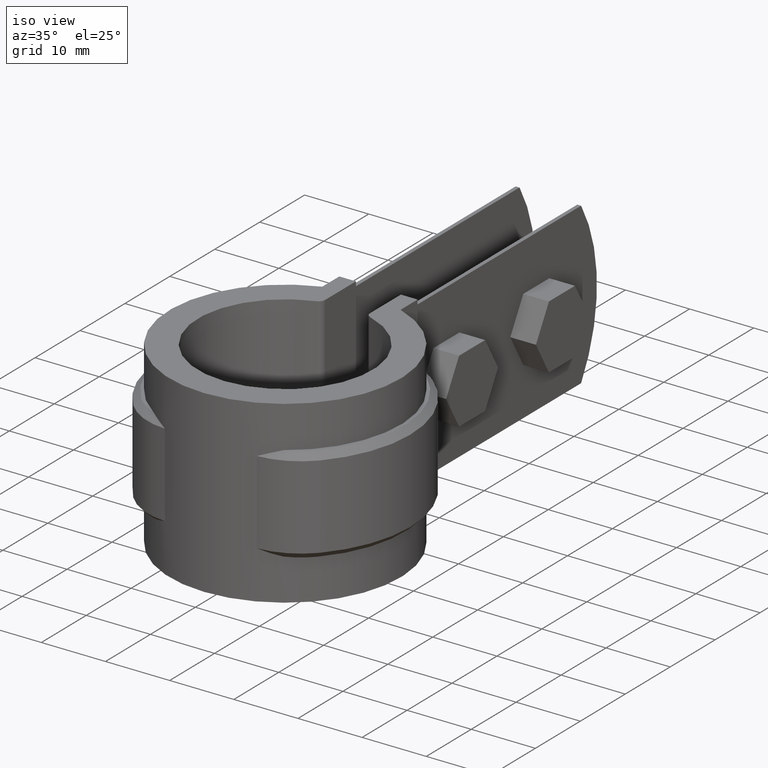
[diagram: clean part render]
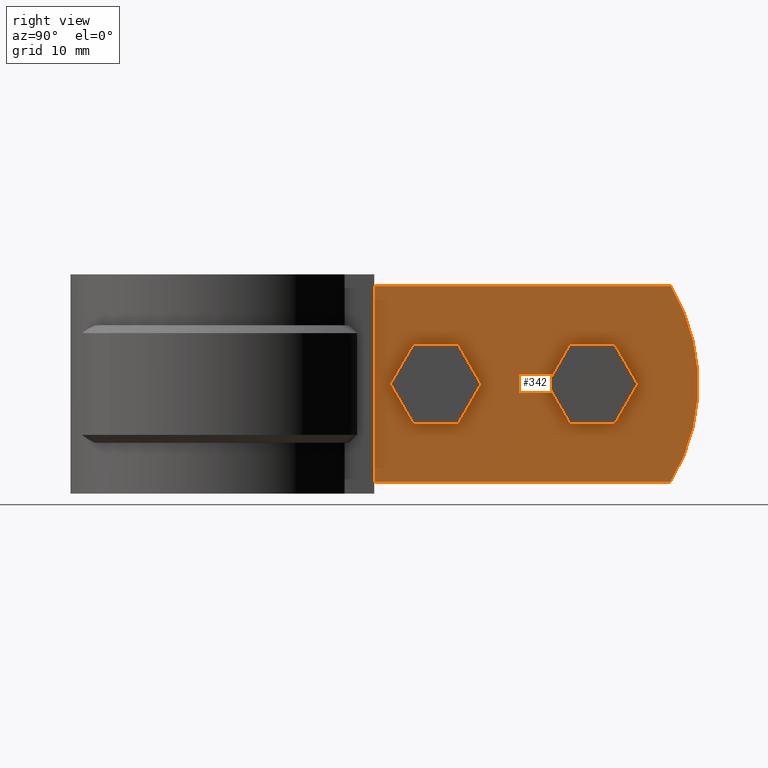
[diagram: tour spotlight — one face highlighted and labeled with its STEP entity id]
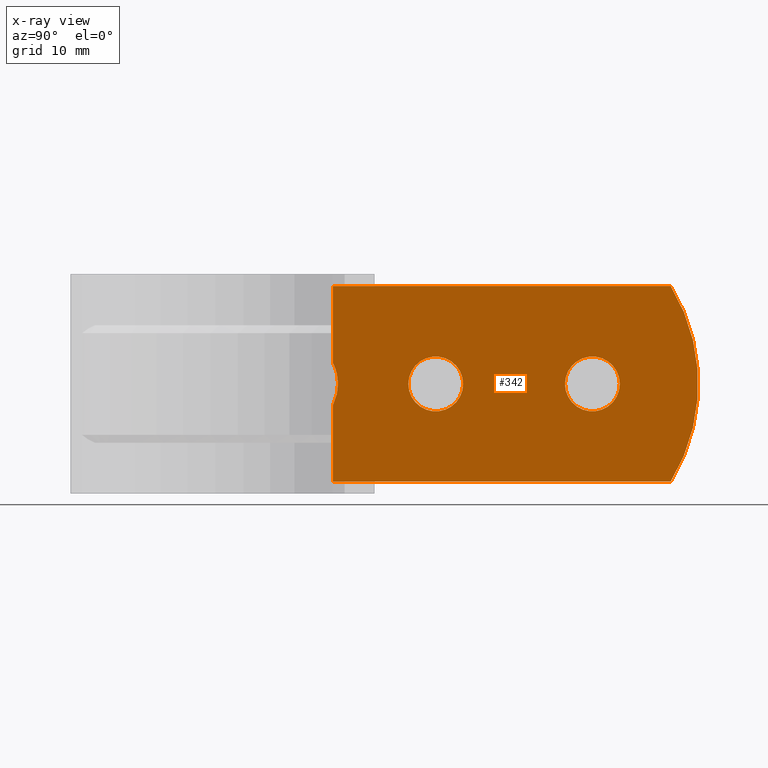
[diagram: x-ray of the same camera — body ghosted, this tour face saturated]
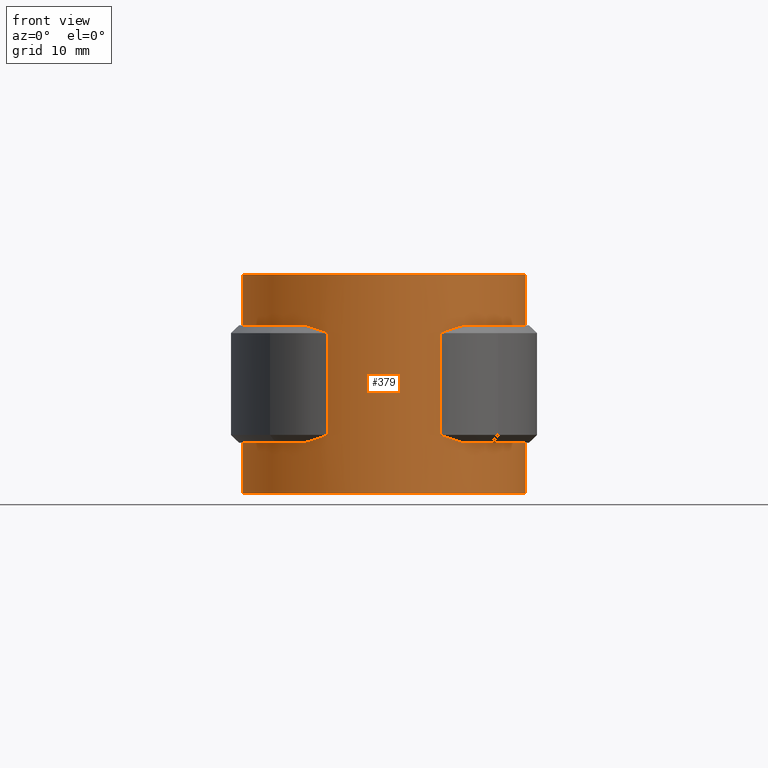
[diagram: tour spotlight — one face highlighted and labeled with its STEP entity id]
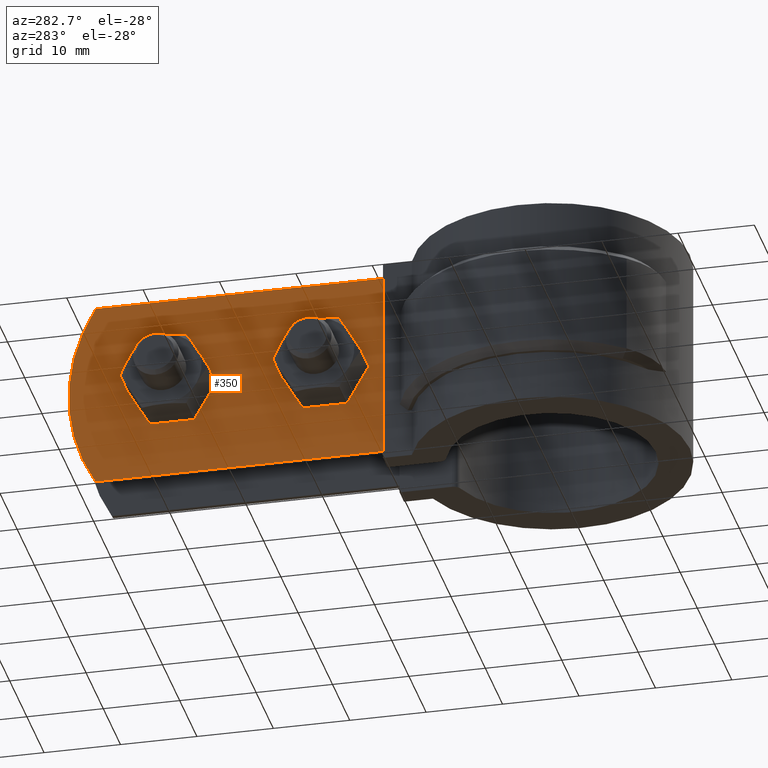
[diagram: tour spotlight — one face highlighted and labeled with its STEP entity id]
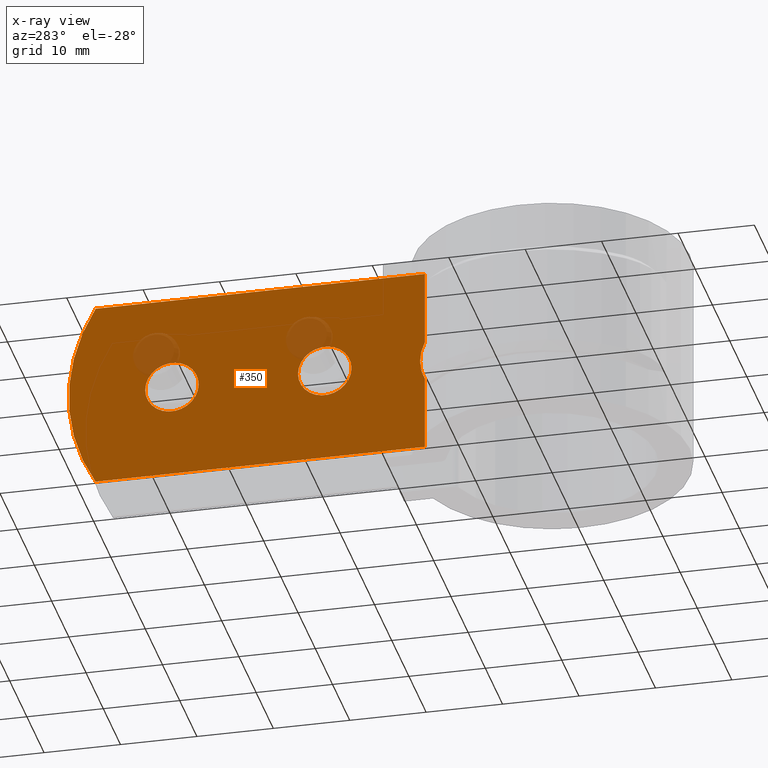
[diagram: x-ray of the same camera — body ghosted, this tour face saturated]
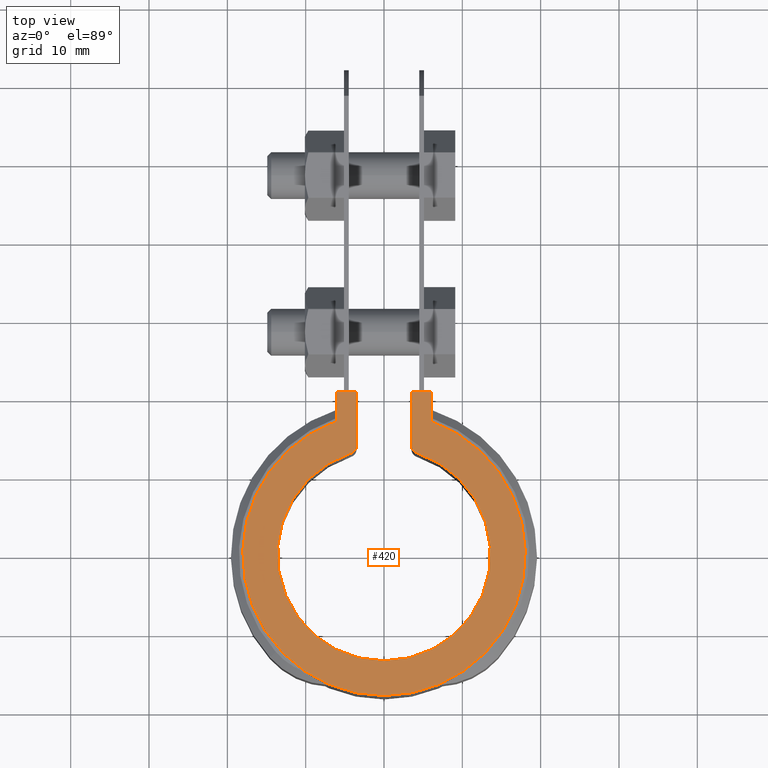
[diagram: tour spotlight — one face highlighted and labeled with its STEP entity id]
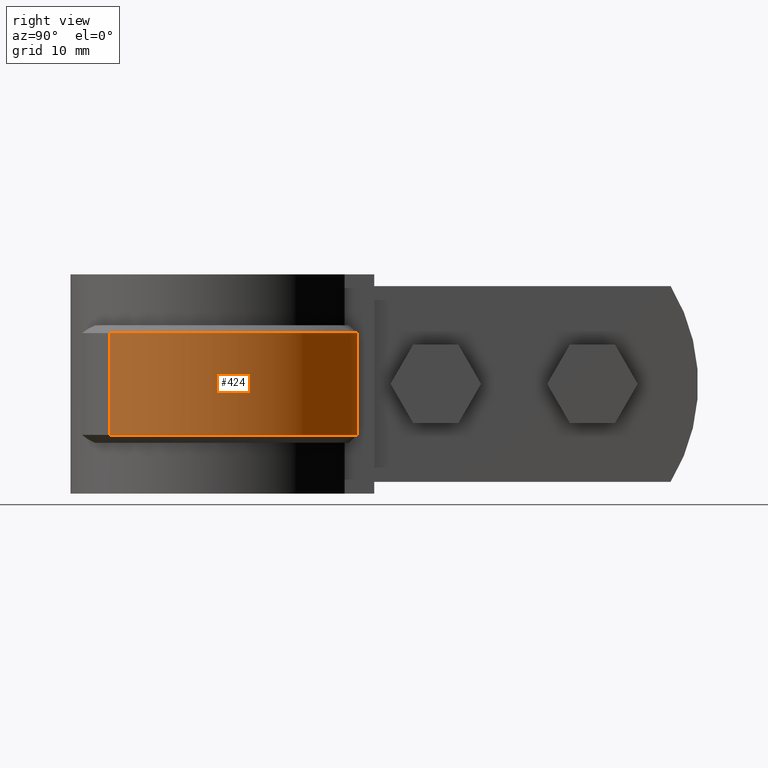
[diagram: tour spotlight — one face highlighted and labeled with its STEP entity id]
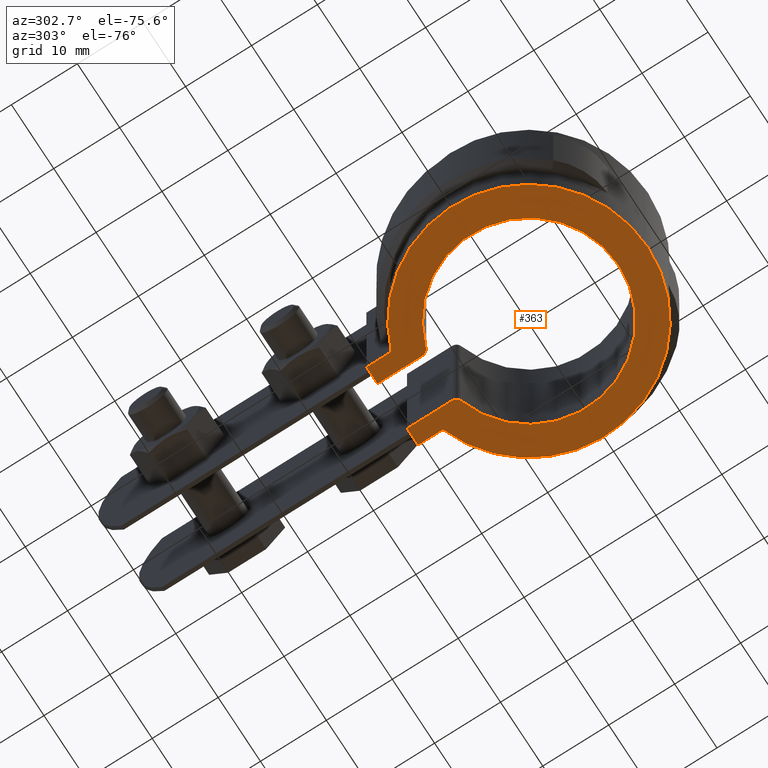
[diagram: tour spotlight — one face highlighted and labeled with its STEP entity id]
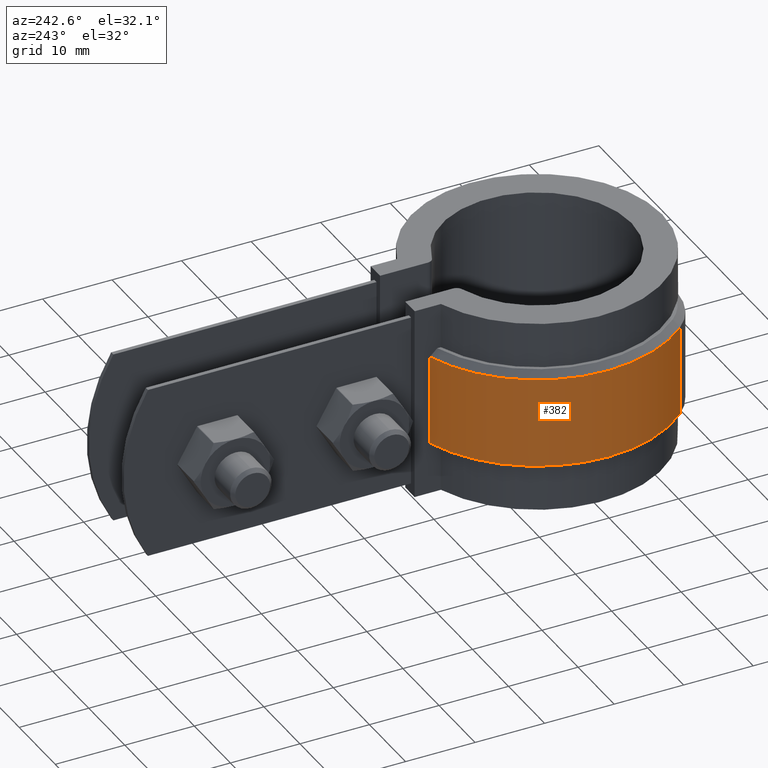
[diagram: tour spotlight — one face highlighted and labeled with its STEP entity id]
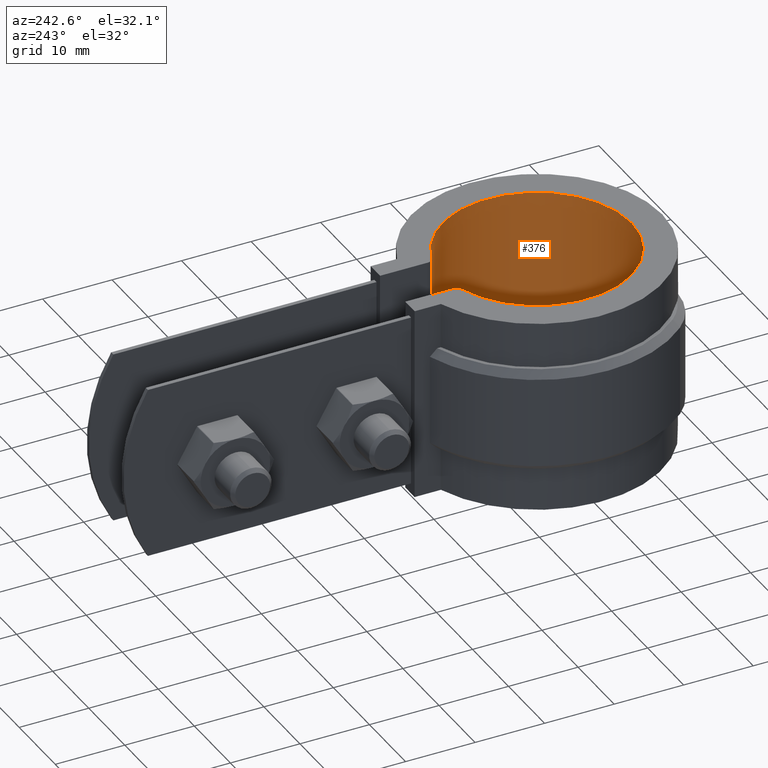
[diagram: tour spotlight — one face highlighted and labeled with its STEP entity id]
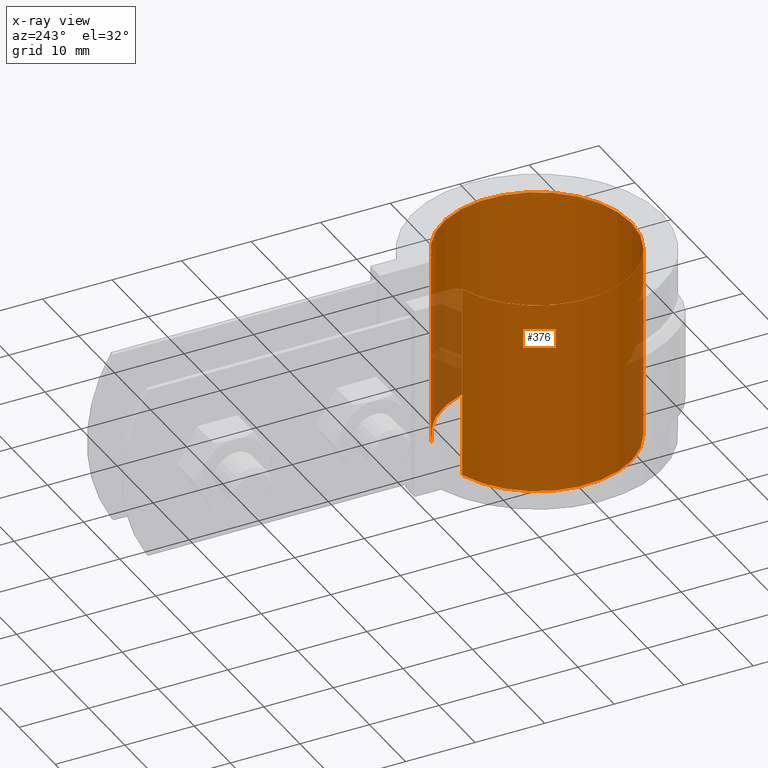
[diagram: x-ray of the same camera — body ghosted, this tour face saturated]
A machine part: a face-by-face anatomy tour. The part has 186 B-rep faces; the first image is the clean iso view, then the 8 largest visible faces are spotlighted one at a time (largest first), each with its STEP entity span.

Face 1 — right view, entity #342. An x-ray twin of the same camera follows (body ghosted, this face saturated) — the face is partly hidden behind the body. In plain terms, the highlighted planar face has unit normal (-1, 0, 0).
Definition (entity closure, byte-faithful):
#342 = ADVANCED_FACE( '', ( #557, #558, #559 ), #560, .F. );
#557 = FACE_BOUND( '', #1103, .T. );
#558 = FACE_BOUND( '', #1104, .T. );
#559 = FACE_OUTER_BOUND( '', #1105, .T. );
#560 = PLANE( '', #1106 );
#1103 = EDGE_LOOP( '', ( #2250 ) );
#1104 = EDGE_LOOP( '', ( #2251 ) );
#1105 = EDGE_LOOP( '', ( #2252, #2253, #2254, #2255, #2256, #2257 ) );
#1106 = AXIS2_PLACEMENT_3D( '', #2258, #2259, #2260 );
#2250 = ORIENTED_EDGE( '', *, *, #3940, .F. );
#2251 = ORIENTED_EDGE( '', *, *, #3941, .F. );
#2252 = ORIENTED_EDGE( '', *, *, #3874, .F. );
#2253 = ORIENTED_EDGE( '', *, *, #3942, .T. );
#2254 = ORIENTED_EDGE( '', *, *, #3943, .T. );
#2255 = ORIENTED_EDGE( '', *, *, #3944, .F. );
#2256 = ORIENTED_EDGE( '', *, *, #3848, .F. );
#2257 = ORIENTED_EDGE( '', *, *, #3931, .T. );
#2258 = CARTESIAN_POINT( '', ( 5.10000000000000, 15.4916106328554, 0.000000000000000 ) );
#2259 = DIRECTION( '', ( -1.00000000000000, 6.12303176911189E-017, 0.000000000000000 ) );
#2260 = DIRECTION( '', ( 6.12303176911189E-017, 1.00000000000000, 0.000000000000000 ) );
#3848 = EDGE_CURVE( '', #4358, #4360, #4361, .T. );
#3874 = EDGE_CURVE( '', #4407, #4401, #4409, .T. );
#3931 = EDGE_CURVE( '', #4358, #4401, #4502, .T. );
#3940 = EDGE_CURVE( '', #4514, #4514, #4515, .F. );
#3941 = EDGE_CURVE( '', #4516, #4516, #4517, .F. );
#3942 = EDGE_CURVE( '', #4407, #4518, #4519, .T. );
#3943 = EDGE_CURVE( '', #4518, #4520, #4521, .T. );
#3944 = EDGE_CURVE( '', #4360, #4520, #4522, .T. );
#4358 = VERTEX_POINT( '', #5303 );
#4360 = VERTEX_POINT( '', #5305 );
#4361 = LINE( '', #5306, #5307 );
#4401 = VERTEX_POINT( '', #5509 );
#4407 = VERTEX_POINT( '', #5559 );
#4409 = B_SPLINE_CURVE_WITH_KNOTS( '', 3, ( #5574, #5575, #5576, #5577, #5578, #5579, #5580, #5581, #5582, #5583 ), .UNSPECIFIED., .F., .F., ( 4, 2, 2, 2, 4 ), ( 7.15244812269100E-018, 0.00136579450935443, 0.00273158901870885, 0.00409738352806327, 0.00546317803741769 ), .UNSPECIFIED. );
#4502 = LINE( '', #6005, #6006 );
#4514 = VERTEX_POINT( '', #6058 );
#4515 = CIRCLE( '', #6059, 3.50000000000000 );
#4516 = VERTEX_POINT( '', #6060 );
#4517 = CIRCLE( '', #6061, 3.50000000000000 );
#4518 = VERTEX_POINT( '', #6062 );
#4519 = LINE( '', #6063, #6064 );
#4520 = VERTEX_POINT( '', #6065 );
#4521 = LINE( '', #6066, #6067 );
#4522 = CIRCLE( '', #6068, 24.0000000000000 );
#5303 = CARTESIAN_POINT( '', ( 5.10000000000000, 15.4916106328554, 0.000000000000000 ) );
#5305 = CARTESIAN_POINT( '', ( 5.10000000000001, 58.5870920108522, 2.39038878801277E-031 ) );
#5306 = CARTESIAN_POINT( '', ( 5.10000000000000, 15.4916106328554, 0.000000000000000 ) );
#5307 = VECTOR( '', #7719, 1000.00000000000 );
#5509 = CARTESIAN_POINT( '', ( 5.10000000000000, 15.4916106328554, -9.85142775085576 ) );
#5559 = CARTESIAN_POINT( '', ( 5.10000000000000, 15.4916106328554, -15.1485722491442 ) );
#5574 = CARTESIAN_POINT( '', ( 5.10000000000000, 15.4916106328554, -15.1485722491442 ) );
#5575 = CARTESIAN_POINT( '', ( 5.10000000000000, 15.6967920675091, -14.7350618658671 ) );
#5576 = CARTESIAN_POINT( '', ( 5.10000000000001, 15.8522280185925, -14.3064620349916 ) );
#5577 = CARTESIAN_POINT( '', ( 5.10000000000001, 16.0655025348784, -13.4196578637597 ) );
#5578 = CARTESIAN_POINT( '', ( 5.09999999999998, 16.1222734361860, -12.9567523839680 ) );
#5579 = CARTESIAN_POINT( '', ( 5.09999999999998, 16.1225202626657, -12.0462908152732 ) );
#5580 = CARTESIAN_POINT( '', ( 5.10000000000000, 16.0678594231896, -11.5925929151367 ) );
#5581 = CARTESIAN_POINT( '', ( 5.10000000000000, 15.8533328580298, -10.6957203202213 ) );
#5582 = CARTESIAN_POINT( '', ( 5.09999999999949, 15.6967703169076, -10.2648942992723 ) );
#5583 = CARTESIAN_POINT( '', ( 5.09999999999949, 15.4916106328555, -9.85142775085575 ) );
#6005 = CARTESIAN_POINT( '', ( 5.10000000000000, 15.4916106328554, 0.000000000000000 ) );
#6006 = VECTOR( '', #7792, 1000.00000000000 );
#6058 = CARTESIAN_POINT( '', ( 5.10000000000000, 25.0992907623043, -12.5000000000000 ) );
#6059 = AXIS2_PLACEMENT_3D( '', #7802, #7803, #7804 );
#6060 = CARTESIAN_POINT( '', ( 5.10000000000000, 45.0992907623043, -12.5000000000000 ) );
#6061 = AXIS2_PLACEMENT_3D( '', #7805, #7806, #7807 );
#6062 = CARTESIAN_POINT( '', ( 5.10000000000000, 15.4916106328554, -25.0000000000000 ) );
#6063 = CARTESIAN_POINT( '', ( 5.10000000000000, 15.4916106328554, 0.000000000000000 ) );
#6064 = VECTOR( '', #7808, 1000.00000000000 );
#6065 = CARTESIAN_POINT( '', ( 5.10000000000001, 58.5870920108522, -25.0000000000000 ) );
#6066 = CARTESIAN_POINT( '', ( 5.10000000000000, 15.4916106328554, -25.0000000000000 ) );
#6067 = VECTOR( '', #7809, 1000.00000000000 );
#6068 = AXIS2_PLACEMENT_3D( '', #7810, #7811, #7812 );
#7719 = DIRECTION( '', ( 6.12303176911189E-017, 1.00000000000000, 0.000000000000000 ) );
#7792 = DIRECTION( '', ( 0.000000000000000, 0.000000000000000, -1.00000000000000 ) );
#7802 = CARTESIAN_POINT( '', ( 5.10000000000000, 28.5992907623043, -12.5000000000000 ) );
#7803 = DIRECTION( '', ( -1.00000000000000, 6.12303176911189E-017, 0.000000000000000 ) );
#7804 = DIRECTION( '', ( -6.12303176911189E-017, -1.00000000000000, 0.000000000000000 ) );
#7805 = CARTESIAN_POINT( '', ( 5.10000000000000, 48.5992907623043, -12.5000000000000 ) );
#7806 = DIRECTION( '', ( -1.00000000000000, 6.12303176911189E-017, 0.000000000000000 ) );
#7807 = DIRECTION( '', ( -6.12303176911189E-017, -1.00000000000000, 0.000000000000000 ) );
#7808 = DIRECTION( '', ( 0.000000000000000, 0.000000000000000, -1.00000000000000 ) );
#7809 = DIRECTION( '', ( 6.12303176911189E-017, 1.00000000000000, 0.000000000000000 ) );
#7810 = CARTESIAN_POINT( '', ( 5.09999999999999, 38.0992907623043, -12.5000000000000 ) );
#7811 = DIRECTION( '', ( -1.00000000000000, 6.12303176911189E-017, 0.000000000000000 ) );
#7812 = DIRECTION( '', ( -6.12303176911189E-017, -1.00000000000000, 0.000000000000000 ) );

Face 2 — front view, entity #379. In plain terms, the highlighted cylindrical surface (partial cylindrical patch) has radius 18.035 mm, axis along (0, 0, -1).
Definition (entity closure, byte-faithful):
#379 = ADVANCED_FACE( '', ( #643 ), #644, .T. );
#643 = FACE_OUTER_BOUND( '', #1237, .T. );
#644 = CYLINDRICAL_SURFACE( '', #1238, 18.0350000000000 );
#1237 = EDGE_LOOP( '', ( #2574, #2575, #2576, #2577, #2578, #2579, #2580, #2581, #2582, #2583, #2584, #2585, #2586, #2587, #2588, #2589 ) );
#1238 = AXIS2_PLACEMENT_3D( '', #2590, #2591, #2592 );
#2574 = ORIENTED_EDGE( '', *, *, #4056, .F. );
#2575 = ORIENTED_EDGE( '', *, *, #4053, .T. );
#2576 = ORIENTED_EDGE( '', *, *, #4057, .T. );
#2577 = ORIENTED_EDGE( '', *, *, #4058, .T. );
#2578 = ORIENTED_EDGE( '', *, *, #4059, .T. );
#2579 = ORIENTED_EDGE( '', *, *, #4060, .T. );
#2580 = ORIENTED_EDGE( '', *, *, #4061, .T. );
#2581 = ORIENTED_EDGE( '', *, *, #3985, .F. );
#2582 = ORIENTED_EDGE( '', *, *, #4062, .T. );
#2583 = ORIENTED_EDGE( '', *, *, #4063, .T. );
#2584 = ORIENTED_EDGE( '', *, *, #4064, .T. );
#2585 = ORIENTED_EDGE( '', *, *, #4065, .T. );
#2586 = ORIENTED_EDGE( '', *, *, #4066, .F. );
#2587 = ORIENTED_EDGE( '', *, *, #3979, .F. );
#2588 = ORIENTED_EDGE( '', *, *, #3977, .F. );
#2589 = ORIENTED_EDGE( '', *, *, #4067, .T. );
#2590 = CARTESIAN_POINT( '', ( 0.000000000000000, 1.38777878078145E-014, -26.5000000000000 ) );
#2591 = DIRECTION( '', ( 0.000000000000000, 0.000000000000000, -1.00000000000000 ) );
#2592 = DIRECTION( '', ( 0.000000000000000, -1.00000000000000, 0.000000000000000 ) );
#3977 = EDGE_CURVE( '', #4573, #4556, #4575, .T. );
#3979 = EDGE_CURVE( '', #4556, #4578, #4579, .T. );
#3985 = EDGE_CURVE( '', #4588, #4590, #4591, .T. );
#4053 = EDGE_CURVE( '', #4712, #4710, #4713, .T. );
#4056 = EDGE_CURVE( '', #4712, #4716, #4717, .T. );
#4057 = EDGE_CURVE( '', #4710, #4718, #4719, .T. );
#4058 = EDGE_CURVE( '', #4718, #4720, #4721, .T. );
#4059 = EDGE_CURVE( '', #4720, #4722, #4723, .T. );
#4060 = EDGE_CURVE( '', #4722, #4724, #4725, .T. );
#4061 = EDGE_CURVE( '', #4724, #4590, #4726, .T. );
#4062 = EDGE_CURVE( '', #4588, #4727, #4728, .T. );
#4063 = EDGE_CURVE( '', #4727, #4729, #4730, .T. );
#4064 = EDGE_CURVE( '', #4729, #4731, #4732, .F. );
#4065 = EDGE_CURVE( '', #4731, #4733, #4734, .T. );
#4066 = EDGE_CURVE( '', #4578, #4733, #4735, .T. );
#4067 = EDGE_CURVE( '', #4573, #4716, #4736, .T. );
#4556 = VERTEX_POINT( '', #6114 );
#4573 = VERTEX_POINT( '', #6136 );
#4575 = CIRCLE( '', #6139, 18.0350000000000 );
#4578 = VERTEX_POINT( '', #6143 );
#4579 = LINE( '', #6144, #6145 );
#4588 = VERTEX_POINT( '', #6162 );
#4590 = VERTEX_POINT( '', #6165 );
#4591 = LINE( '', #6166, #6167 );
#4710 = VERTEX_POINT( '', #6485 );
#4712 = VERTEX_POINT( '', #6487 );
#4713 = B_SPLINE_CURVE_WITH_KNOTS( '', 3, ( #6488, #6489, #6490, #6491 ), .UNSPECIFIED., .F., .F., ( 4, 4 ), ( 8.49837472194074E-018, 0.00356639113726256 ), .UNSPECIFIED. );
#4716 = VERTEX_POINT( '', #6495 );
#4717 = CIRCLE( '', #6496, 18.0350000000000 );
#4718 = VERTEX_POINT( '', #6497 );
#4719 = LINE( '', #6498, #6499 );
#4720 = VERTEX_POINT( '', #6500 );
#4721 = B_SPLINE_CURVE_WITH_KNOTS( '', 3, ( #6501, #6502, #6503, #6504 ), .UNSPECIFIED., .F., .F., ( 4, 4 ), ( 0.000000000000000, 0.00356639113726257 ), .UNSPECIFIED. );
#4722 = VERTEX_POINT( '', #6505 );
#4723 = CIRCLE( '', #6506, 18.0350000000000 );
#4724 = VERTEX_POINT( '', #6507 );
#4725 = LINE( '', #6508, #6509 );
#4726 = CIRCLE( '', #6510, 18.0350000000000 );
#4727 = VERTEX_POINT( '', #6511 );
#4728 = CIRCLE( '', #6512, 18.0350000000000 );
#4729 = VERTEX_POINT( '', #6513 );
#4730 = B_SPLINE_CURVE_WITH_KNOTS( '', 3, ( #6514, #6515, #6516, #6517 ), .UNSPECIFIED., .F., .F., ( 4, 4 ), ( 9.69739903612216E-018, 0.00356639113726256 ), .UNSPECIFIED. );
#4731 = VERTEX_POINT( '', #6518 );
#4732 = LINE( '', #6519, #6520 );
#4733 = VERTEX_POINT( '', #6521 );
#4734 = B_SPLINE_CURVE_WITH_KNOTS( '', 3, ( #6522, #6523, #6524, #6525 ), .UNSPECIFIED., .F., .F., ( 4, 4 ), ( 0.000000000000000, 0.00356639113726257 ), .UNSPECIFIED. );
#4735 = CIRCLE( '', #6526, 18.0350000000000 );
#4736 = LINE( '', #6527, #6528 );
#6114 = CARTESIAN_POINT( '', ( -6.10000000000000, 16.9720719124095, -26.5000000000000 ) );
#6136 = CARTESIAN_POINT( '', ( 6.10000000000001, 16.9720719124095, -26.5000000000000 ) );
#6139 = AXIS2_PLACEMENT_3D( '', #7873, #7874, #7875 );
#6143 = CARTESIAN_POINT( '', ( -6.10000000000000, 16.9720719124095, -20.0000000000000 ) );
#6144 = CARTESIAN_POINT( '', ( -6.10000000000000, 16.9720719124095, -26.5000000000000 ) );
#6145 = VECTOR( '', #7877, 1000.00000000000 );
#6162 = CARTESIAN_POINT( '', ( -6.10000000000000, 16.9720719124095, -5.00000000000000 ) );
#6165 = CARTESIAN_POINT( '', ( -6.10000000000000, 16.9720719124095, 1.50000000000000 ) );
#6166 = CARTESIAN_POINT( '', ( -6.10000000000000, 16.9720719124095, -26.5000000000000 ) );
#6167 = VECTOR( '', #7881, 1000.00000000000 );
#6485 = CARTESIAN_POINT( '', ( 7.17238060487721, -16.5474524159697, -19.0000000000000 ) );
#6487 = CARTESIAN_POINT( '', ( 10.1699563448573, -14.8940663669697, -20.0000000000000 ) );
#6488 = CARTESIAN_POINT( '', ( 10.1699563448573, -14.8940663669697, -20.0000000000000 ) );
#6489 = CARTESIAN_POINT( '', ( 9.20551594035216, -15.5526049130839, -19.7400863560935 ) );
#6490 = CARTESIAN_POINT( '', ( 8.20683278901869, -16.0990761586644, -19.3975274280984 ) );
#6491 = CARTESIAN_POINT( '', ( 7.17238060487720, -16.5474524159697, -19.0000000000000 ) );
#6495 = CARTESIAN_POINT( '', ( 6.10000000000001, 16.9720719124095, -20.0000000000000 ) );
#6496 = AXIS2_PLACEMENT_3D( '', #7979, #7980, #7981 );
#6497 = CARTESIAN_POINT( '', ( 7.17238060487721, -16.5474524159697, -6.00000000000000 ) );
#6498 = CARTESIAN_POINT( '', ( 7.17238060487721, -16.5474524159697, -12.5000000000000 ) );
#6499 = VECTOR( '', #7982, 1000.00000000000 );
#6500 = CARTESIAN_POINT( '', ( 10.1699563448573, -14.8940663669697, -5.00000000000000 ) );
#6501 = CARTESIAN_POINT( '', ( 7.17238060487721, -16.5474524159697, -6.00000000000000 ) );
#6502 = CARTESIAN_POINT( '', ( 8.20683278901869, -16.0990761586644, -5.60247257190161 ) );
#6503 = CARTESIAN_POINT( '', ( 9.20551594035216, -15.5526049130839, -5.25991364390649 ) );
#6504 = CARTESIAN_POINT( '', ( 10.1699563448573, -14.8940663669697, -5.00000000000000 ) );
#6505 = CARTESIAN_POINT( '', ( 6.10000000000001, 16.9720719124095, -5.00000000000000 ) );
#6506 = AXIS2_PLACEMENT_3D( '', #7983, #7984, #7985 );
#6507 = CARTESIAN_POINT( '', ( 6.10000000000001, 16.9720719124095, 1.50000000000000 ) );
#6508 = CARTESIAN_POINT( '', ( 6.10000000000001, 16.9720719124095, -26.5000000000000 ) );
#6509 = VECTOR( '', #7986, 1000.00000000000 );
#6510 = AXIS2_PLACEMENT_3D( '', #7987, #7988, #7989 );
#6511 = CARTESIAN_POINT( '', ( -10.1699563448573, -14.8940663669697, -5.00000000000000 ) );
#6512 = AXIS2_PLACEMENT_3D( '', #7990, #7991, #7992 );
#6513 = CARTESIAN_POINT( '', ( -7.17238060487721, -16.5474524159697, -6.00000000000000 ) );
#6514 = CARTESIAN_POINT( '', ( -10.1699563448573, -14.8940663669697, -5.00000000000000 ) );
#6515 = CARTESIAN_POINT( '', ( -9.20551594035216, -15.5526049130839, -5.25991364390649 ) );
#6516 = CARTESIAN_POINT( '', ( -8.20683278901869, -16.0990761586644, -5.60247257190161 ) );
#6517 = CARTESIAN_POINT( '', ( -7.17238060487720, -16.5474524159697, -6.00000000000000 ) );
#6518 = CARTESIAN_POINT( '', ( -7.17238060487721, -16.5474524159697, -19.0000000000000 ) );
#6519 = CARTESIAN_POINT( '', ( -7.17238060487721, -16.5474524159697, -12.5000000000000 ) );
#6520 = VECTOR( '', #7993, 1000.00000000000 );
#6521 = CARTESIAN_POINT( '', ( -10.1699563448573, -14.8940663669697, -20.0000000000000 ) );
#6522 = CARTESIAN_POINT( '', ( -7.17238060487721, -16.5474524159697, -19.0000000000000 ) );
#6523 = CARTESIAN_POINT( '', ( -8.20683278901869, -16.0990761586644, -19.3975274280984 ) );
#6524 = CARTESIAN_POINT( '', ( -9.20551594035216, -15.5526049130839, -19.7400863560935 ) );
#6525 = CARTESIAN_POINT( '', ( -10.1699563448573, -14.8940663669697, -20.0000000000000 ) );
#6526 = AXIS2_PLACEMENT_3D( '', #7994, #7995, #7996 );
#6527 = CARTESIAN_POINT( '', ( 6.10000000000001, 16.9720719124095, -26.5000000000000 ) );
#6528 = VECTOR( '', #7997, 1000.00000000000 );
#7873 = CARTESIAN_POINT( '', ( 0.000000000000000, 1.38777878078145E-014, -26.5000000000000 ) );
#7874 = DIRECTION( '', ( 0.000000000000000, 0.000000000000000, -1.00000000000000 ) );
#7875 = DIRECTION( '', ( 1.00000000000000, 0.000000000000000, 0.000000000000000 ) );
#7877 = DIRECTION( '', ( 0.000000000000000, 0.000000000000000, 1.00000000000000 ) );
#7881 = DIRECTION( '', ( 0.000000000000000, 0.000000000000000, 1.00000000000000 ) );
#7979 = CARTESIAN_POINT( '', ( 0.000000000000000, 1.38777878078145E-014, -20.0000000000000 ) );
#7980 = DIRECTION( '', ( 0.000000000000000, 0.000000000000000, 1.00000000000000 ) );
#7981 = DIRECTION( '', ( 1.00000000000000, 0.000000000000000, 0.000000000000000 ) );
#7982 = DIRECTION( '', ( 0.000000000000000, 0.000000000000000, 1.00000000000000 ) );
#7983 = CARTESIAN_POINT( '', ( 0.000000000000000, 1.38777878078145E-014, -5.00000000000000 ) );
#7984 = DIRECTION( '', ( 0.000000000000000, 0.000000000000000, 1.00000000000000 ) );
#7985 = DIRECTION( '', ( 1.00000000000000, 0.000000000000000, 0.000000000000000 ) );
#7986 = DIRECTION( '', ( 0.000000000000000, 0.000000000000000, 1.00000000000000 ) );
#7987 = CARTESIAN_POINT( '', ( 0.000000000000000, 1.38777878078145E-014, 1.50000000000000 ) );
#7988 = DIRECTION( '', ( 0.000000000000000, 0.000000000000000, -1.00000000000000 ) );
#7989 = DIRECTION( '', ( 1.00000000000000, 0.000000000000000, 0.000000000000000 ) );
#7990 = CARTESIAN_POINT( '', ( 0.000000000000000, 1.38777878078145E-014, -5.00000000000000 ) );
#7991 = DIRECTION( '', ( 0.000000000000000, 0.000000000000000, 1.00000000000000 ) );
#7992 = DIRECTION( '', ( 1.00000000000000, 0.000000000000000, 0.000000000000000 ) );
#7993 = DIRECTION( '', ( 0.000000000000000, 0.000000000000000, 1.00000000000000 ) );
#7994 = CARTESIAN_POINT( '', ( 0.000000000000000, 1.38777878078145E-014, -20.0000000000000 ) );
#7995 = DIRECTION( '', ( 0.000000000000000, 0.000000000000000, 1.00000000000000 ) );
#7996 = DIRECTION( '', ( 1.00000000000000, 0.000000000000000, 0.000000000000000 ) );
#7997 = DIRECTION( '', ( 0.000000000000000, 0.000000000000000, 1.00000000000000 ) );

Face 3 — auxiliary view, entity #350. An x-ray twin of the same camera follows (body ghosted, this face saturated) — the face is partly hidden behind the body. In plain terms, the highlighted planar face has unit normal (1, -0, 0).
Definition (entity closure, byte-faithful):
#350 = ADVANCED_FACE( '', ( #577, #578, #579 ), #580, .F. );
#577 = FACE_BOUND( '', #1171, .T. );
#578 = FACE_BOUND( '', #1172, .T. );
#579 = FACE_OUTER_BOUND( '', #1173, .T. );
#580 = PLANE( '', #1174 );
#1171 = EDGE_LOOP( '', ( #2319 ) );
#1172 = EDGE_LOOP( '', ( #2320 ) );
#1173 = EDGE_LOOP( '', ( #2321, #2322, #2323, #2324, #2325, #2326 ) );
#1174 = AXIS2_PLACEMENT_3D( '', #2327, #2328, #2329 );
#2319 = ORIENTED_EDGE( '', *, *, #3939, .F. );
#2320 = ORIENTED_EDGE( '', *, *, #3959, .F. );
#2321 = ORIENTED_EDGE( '', *, *, #3877, .F. );
#2322 = ORIENTED_EDGE( '', *, *, #3930, .F. );
#2323 = ORIENTED_EDGE( '', *, *, #3845, .F. );
#2324 = ORIENTED_EDGE( '', *, *, #3960, .F. );
#2325 = ORIENTED_EDGE( '', *, *, #3949, .T. );
#2326 = ORIENTED_EDGE( '', *, *, #3946, .F. );
#2327 = CARTESIAN_POINT( '', ( -5.10000000000000, 62.0992907623043, 0.000000000000000 ) );
#2328 = DIRECTION( '', ( 1.00000000000000, -6.12303176911189E-017, 0.000000000000000 ) );
#2329 = DIRECTION( '', ( -6.12303176911189E-017, -1.00000000000000, 0.000000000000000 ) );
#3845 = EDGE_CURVE( '', #4352, #4355, #4356, .T. );
#3877 = EDGE_CURVE( '', #4412, #4414, #4415, .T. );
#3930 = EDGE_CURVE( '', #4355, #4412, #4501, .T. );
#3939 = EDGE_CURVE( '', #4512, #4512, #4513, .F. );
#3946 = EDGE_CURVE( '', #4414, #4524, #4525, .T. );
#3949 = EDGE_CURVE( '', #4529, #4524, #4530, .T. );
#3959 = EDGE_CURVE( '', #4545, #4545, #4546, .F. );
#3960 = EDGE_CURVE( '', #4529, #4352, #4547, .T. );
#4352 = VERTEX_POINT( '', #5295 );
#4355 = VERTEX_POINT( '', #5299 );
#4356 = LINE( '', #5300, #5301 );
#4412 = VERTEX_POINT( '', #5590 );
#4414 = VERTEX_POINT( '', #5605 );
#4415 = B_SPLINE_CURVE_WITH_KNOTS( '', 3, ( #5606, #5607, #5608, #5609, #5610, #5611, #5612, #5613, #5614, #5615 ), .UNSPECIFIED., .F., .F., ( 4, 2, 2, 2, 4 ), ( 8.84538885469324E-018, 0.00136579450935443, 0.00273158901870885, 0.00409738352806328, 0.00546317803741770 ), .UNSPECIFIED. );
#4501 = LINE( '', #6003, #6004 );
#4512 = VERTEX_POINT( '', #6056 );
#4513 = CIRCLE( '', #6057, 3.50000000000000 );
#4524 = VERTEX_POINT( '', #6070 );
#4525 = LINE( '', #6071, #6072 );
#4529 = VERTEX_POINT( '', #6077 );
#4530 = LINE( '', #6078, #6079 );
#4545 = VERTEX_POINT( '', #6098 );
#4546 = CIRCLE( '', #6099, 3.50000000000000 );
#4547 = CIRCLE( '', #6100, 24.0000000000000 );
#5295 = CARTESIAN_POINT( '', ( -5.09999999999999, 58.5870920108522, 2.07607702108877E-031 ) );
#5299 = CARTESIAN_POINT( '', ( -5.10000000000000, 15.4916106328554, 0.000000000000000 ) );
#5300 = CARTESIAN_POINT( '', ( -5.10000000000000, 62.0992907623043, 0.000000000000000 ) );
#5301 = VECTOR( '', #7712, 1000.00000000000 );
#5590 = CARTESIAN_POINT( '', ( -5.10000000000000, 15.4916106328554, -9.85142775085576 ) );
#5605 = CARTESIAN_POINT( '', ( -5.10000000000000, 15.4916106328554, -15.1485722491442 ) );
#5606 = CARTESIAN_POINT( '', ( -5.10000000000000, 15.4916106328554, -9.85142775085575 ) );
#5607 = CARTESIAN_POINT( '', ( -5.10000000000000, 15.6967920675091, -10.2649381341329 ) );
#5608 = CARTESIAN_POINT( '', ( -5.10000000000001, 15.8522280185925, -10.6935379650084 ) );
#5609 = CARTESIAN_POINT( '', ( -5.10000000000001, 16.0655025348784, -11.5803421362403 ) );
#5610 = CARTESIAN_POINT( '', ( -5.09999999999998, 16.1222734361860, -12.0432476160320 ) );
#5611 = CARTESIAN_POINT( '', ( -5.09999999999998, 16.1225202626657, -12.9537091847268 ) );
#5612 = CARTESIAN_POINT( '', ( -5.10000000000000, 16.0678594231896, -13.4074070848633 ) );
#5613 = CARTESIAN_POINT( '', ( -5.10000000000000, 15.8533328580298, -14.3042796797787 ) );
#5614 = CARTESIAN_POINT( '', ( -5.09999999999949, 15.6967703169076, -14.7351057007277 ) );
#5615 = CARTESIAN_POINT( '', ( -5.09999999999949, 15.4916106328555, -15.1485722491443 ) );
#6003 = CARTESIAN_POINT( '', ( -5.10000000000000, 15.4916106328554, 0.000000000000000 ) );
#6004 = VECTOR( '', #7791, 1000.00000000000 );
#6056 = CARTESIAN_POINT( '', ( -5.10000000000000, 32.0992907623043, -12.5000000000000 ) );
#6057 = AXIS2_PLACEMENT_3D( '', #7799, #7800, #7801 );
#6070 = CARTESIAN_POINT( '', ( -5.10000000000000, 15.4916106328554, -25.0000000000000 ) );
#6071 = CARTESIAN_POINT( '', ( -5.10000000000000, 15.4916106328554, 0.000000000000000 ) );
#6072 = VECTOR( '', #7816, 1000.00000000000 );
#6077 = CARTESIAN_POINT( '', ( -5.09999999999999, 58.5870920108522, -25.0000000000000 ) );
#6078 = CARTESIAN_POINT( '', ( -5.10000000000000, 62.0992907623043, -25.0000000000000 ) );
#6079 = VECTOR( '', #7821, 1000.00000000000 );
#6098 = CARTESIAN_POINT( '', ( -5.10000000000000, 52.0992907623043, -12.5000000000000 ) );
#6099 = AXIS2_PLACEMENT_3D( '', #7841, #7842, #7843 );
#6100 = AXIS2_PLACEMENT_3D( '', #7844, #7845, #7846 );
#7712 = DIRECTION( '', ( -6.12303176911189E-017, -1.00000000000000, 0.000000000000000 ) );
#7791 = DIRECTION( '', ( 0.000000000000000, 0.000000000000000, -1.00000000000000 ) );
#7799 = CARTESIAN_POINT( '', ( -5.10000000000000, 28.5992907623043, -12.5000000000000 ) );
#7800 = DIRECTION( '', ( 1.00000000000000, -6.12303176911189E-017, 0.000000000000000 ) );
#7801 = DIRECTION( '', ( 6.12303176911189E-017, 1.00000000000000, 0.000000000000000 ) );
#7816 = DIRECTION( '', ( 0.000000000000000, 0.000000000000000, -1.00000000000000 ) );
#7821 = DIRECTION( '', ( -6.12303176911189E-017, -1.00000000000000, 0.000000000000000 ) );
#7841 = CARTESIAN_POINT( '', ( -5.10000000000000, 48.5992907623043, -12.5000000000000 ) );
#7842 = DIRECTION( '', ( 1.00000000000000, -6.12303176911189E-017, 0.000000000000000 ) );
#7843 = DIRECTION( '', ( 6.12303176911189E-017, 1.00000000000000, 0.000000000000000 ) );
#7844 = CARTESIAN_POINT( '', ( -5.09999999999999, 38.0992907623043, -12.5000000000000 ) );
#7845 = DIRECTION( '', ( 1.00000000000000, -6.12303176911189E-017, 0.000000000000000 ) );
#7846 = DIRECTION( '', ( 6.12303176911189E-017, 1.00000000000000, 0.000000000000000 ) );

Face 4 — top view, entity #420. In plain terms, the highlighted planar face has unit normal (0, 0, -1).
Definition (entity closure, byte-faithful):
#420 = ADVANCED_FACE( '', ( #725 ), #726, .F. );
#725 = FACE_OUTER_BOUND( '', #1415, .T. );
#726 = PLANE( '', #1416 );
#1415 = EDGE_LOOP( '', ( #3154, #3155, #3156, #3157, #3158, #3159, #3160, #3161, #3162, #3163 ) );
#1416 = AXIS2_PLACEMENT_3D( '', #3164, #3165, #3166 );
#3154 = ORIENTED_EDGE( '', *, *, #3991, .F. );
#3155 = ORIENTED_EDGE( '', *, *, #3986, .F. );
#3156 = ORIENTED_EDGE( '', *, *, #4061, .F. );
#3157 = ORIENTED_EDGE( '', *, *, #4077, .F. );
#3158 = ORIENTED_EDGE( '', *, *, #4168, .F. );
#3159 = ORIENTED_EDGE( '', *, *, #4068, .T. );
#3160 = ORIENTED_EDGE( '', *, *, #4045, .T. );
#3161 = ORIENTED_EDGE( '', *, *, #4050, .F. );
#3162 = ORIENTED_EDGE( '', *, *, #4047, .T. );
#3163 = ORIENTED_EDGE( '', *, *, #4055, .T. );
#3164 = CARTESIAN_POINT( '', ( -6.50000000000000, 16.2373058110020, 1.50000000000000 ) );
#3165 = DIRECTION( '', ( 0.000000000000000, 0.000000000000000, -1.00000000000000 ) );
#3166 = DIRECTION( '', ( 0.000000000000000, 1.00000000000000, 0.000000000000000 ) );
#3986 = EDGE_CURVE( '', #4590, #4576, #4592, .T. );
#3991 = EDGE_CURVE( '', #4576, #4601, #4602, .T. );
#4045 = EDGE_CURVE( '', #4698, #4696, #4699, .F. );
#4047 = EDGE_CURVE( '', #4701, #4702, #4703, .F. );
#4050 = EDGE_CURVE( '', #4701, #4696, #4706, .F. );
#4055 = EDGE_CURVE( '', #4702, #4601, #4715, .T. );
#4061 = EDGE_CURVE( '', #4724, #4590, #4726, .T. );
#4068 = EDGE_CURVE( '', #4737, #4698, #4738, .T. );
#4077 = EDGE_CURVE( '', #4750, #4724, #4752, .T. );
#4168 = EDGE_CURVE( '', #4737, #4750, #4891, .T. );
#4576 = VERTEX_POINT( '', #6140 );
#4590 = VERTEX_POINT( '', #6165 );
#4592 = LINE( '', #6168, #6169 );
#4601 = VERTEX_POINT( '', #6182 );
#4602 = LINE( '', #6183, #6184 );
#4696 = VERTEX_POINT( '', #6466 );
#4698 = VERTEX_POINT( '', #6469 );
#4699 = CIRCLE( '', #6470, 1.00000000000000 );
#4701 = VERTEX_POINT( '', #6473 );
#4702 = VERTEX_POINT( '', #6474 );
#4703 = CIRCLE( '', #6475, 1.00000000000000 );
#4706 = CIRCLE( '', #6480, 13.6000000000000 );
#4715 = LINE( '', #6493, #6494 );
#4724 = VERTEX_POINT( '', #6507 );
#4726 = CIRCLE( '', #6510, 18.0350000000000 );
#4737 = VERTEX_POINT( '', #6529 );
#4738 = LINE( '', #6530, #6531 );
#4750 = VERTEX_POINT( '', #6548 );
#4752 = LINE( '', #6551, #6552 );
#4891 = LINE( '', #7195, #7196 );
#6140 = CARTESIAN_POINT( '', ( -6.10000000000001, 20.7500000000000, 1.50000000000000 ) );
#6165 = CARTESIAN_POINT( '', ( -6.10000000000000, 16.9720719124095, 1.50000000000000 ) );
#6168 = CARTESIAN_POINT( '', ( -6.10000000000000, 16.9720719124095, 1.50000000000000 ) );
#6169 = VECTOR( '', #7882, 1000.00000000000 );
#6182 = CARTESIAN_POINT( '', ( -3.50000000000001, 20.7500000000000, 1.50000000000000 ) );
#6183 = CARTESIAN_POINT( '', ( -6.50000000000000, 20.7500000000000, 1.50000000000000 ) );
#6184 = VECTOR( '', #7887, 1000.00000000000 );
#6466 = CARTESIAN_POINT( '', ( 4.19178082191781, 12.9378890681982, 1.50000000000000 ) );
#6469 = CARTESIAN_POINT( '', ( 3.50000000000000, 13.8892044408598, 1.50000000000000 ) );
#6470 = AXIS2_PLACEMENT_3D( '', #7959, #7960, #7961 );
#6473 = CARTESIAN_POINT( '', ( -4.19178082191781, 12.9378890681982, 1.50000000000000 ) );
#6474 = CARTESIAN_POINT( '', ( -3.50000000000001, 13.8892044408598, 1.50000000000000 ) );
#6475 = AXIS2_PLACEMENT_3D( '', #7963, #7964, #7965 );
#6480 = AXIS2_PLACEMENT_3D( '', #7968, #7969, #7970 );
#6493 = CARTESIAN_POINT( '', ( -3.50000000000001, 13.1367433178851, 1.50000000000000 ) );
#6494 = VECTOR( '', #7978, 1000.00000000000 );
#6507 = CARTESIAN_POINT( '', ( 6.10000000000001, 16.9720719124095, 1.50000000000000 ) );
#6510 = AXIS2_PLACEMENT_3D( '', #7987, #7988, #7989 );
#6529 = CARTESIAN_POINT( '', ( 3.50000000000000, 20.7500000000000, 1.50000000000000 ) );
#6530 = CARTESIAN_POINT( '', ( 3.50000000000000, 20.7500000000000, 1.50000000000000 ) );
#6531 = VECTOR( '', #7998, 1000.00000000000 );
#6548 = CARTESIAN_POINT( '', ( 6.10000000000000, 20.7500000000000, 1.50000000000000 ) );
#6551 = CARTESIAN_POINT( '', ( 6.10000000000001, 21.4700000000000, 1.50000000000000 ) );
#6552 = VECTOR( '', #8014, 1000.00000000000 );
#7195 = CARTESIAN_POINT( '', ( -6.50000000000000, 20.7500000000000, 1.50000000000000 ) );
#7196 = VECTOR( '', #8110, 1000.00000000000 );
#7882 = DIRECTION( '', ( 6.07153216591883E-017, 1.00000000000000, 0.000000000000000 ) );
#7887 = DIRECTION( '', ( 1.00000000000000, 0.000000000000000, 0.000000000000000 ) );
#7959 = CARTESIAN_POINT( '', ( 4.50000000000000, 13.8892044408598, 1.50000000000000 ) );
#7960 = DIRECTION( '', ( 0.000000000000000, 0.000000000000000, -1.00000000000000 ) );
#7961 = DIRECTION( '', ( -1.00000000000000, 0.000000000000000, 0.000000000000000 ) );
#7963 = CARTESIAN_POINT( '', ( -4.50000000000001, 13.8892044408598, 1.50000000000000 ) );
#7964 = DIRECTION( '', ( 0.000000000000000, 0.000000000000000, -1.00000000000000 ) );
#7965 = DIRECTION( '', ( -1.00000000000000, 0.000000000000000, 0.000000000000000 ) );
#7968 = CARTESIAN_POINT( '', ( 0.000000000000000, 0.000000000000000, 1.50000000000000 ) );
#7969 = DIRECTION( '', ( 0.000000000000000, 0.000000000000000, -1.00000000000000 ) );
#7970 = DIRECTION( '', ( -1.00000000000000, 0.000000000000000, 0.000000000000000 ) );
#7978 = DIRECTION( '', ( 6.07153216591882E-017, 1.00000000000000, 0.000000000000000 ) );
#7987 = CARTESIAN_POINT( '', ( 0.000000000000000, 1.38777878078145E-014, 1.50000000000000 ) );
#7988 = DIRECTION( '', ( 0.000000000000000, 0.000000000000000, -1.00000000000000 ) );
#7989 = DIRECTION( '', ( 1.00000000000000, 0.000000000000000, 0.000000000000000 ) );
#7998 = DIRECTION( '', ( -6.07153216591882E-017, -1.00000000000000, 0.000000000000000 ) );
#8014 = DIRECTION( '', ( -6.07153216591883E-017, -1.00000000000000, 0.000000000000000 ) );
#8110 = DIRECTION( '', ( 1.00000000000000, 0.000000000000000, 0.000000000000000 ) );

Face 5 — right view, entity #424. In plain terms, the highlighted cylindrical surface (partial cylindrical patch) has radius 19.535 mm, axis along (0, 0, -1).
Definition (entity closure, byte-faithful):
#424 = ADVANCED_FACE( '', ( #733 ), #734, .T. );
#733 = FACE_OUTER_BOUND( '', #1423, .T. );
#734 = CYLINDRICAL_SURFACE( '', #1424, 19.5350000000000 );
#1423 = EDGE_LOOP( '', ( #3188, #3189, #3190, #3191 ) );
#1424 = AXIS2_PLACEMENT_3D( '', #3192, #3193, #3194 );
#3188 = ORIENTED_EDGE( '', *, *, #4080, .F. );
#3189 = ORIENTED_EDGE( '', *, *, #4086, .T. );
#3190 = ORIENTED_EDGE( '', *, *, #4095, .F. );
#3191 = ORIENTED_EDGE( '', *, *, #4071, .T. );
#3192 = CARTESIAN_POINT( '', ( 8.67361737988404E-016, 0.000000000000000, -20.0000000000000 ) );
#3193 = DIRECTION( '', ( 0.000000000000000, 0.000000000000000, -1.00000000000000 ) );
#3194 = DIRECTION( '', ( 0.261069874584080, 0.965319905826381, 0.000000000000000 ) );
#4071 = EDGE_CURVE( '', #4708, #4740, #4743, .T. );
#4080 = EDGE_CURVE( '', #4755, #4740, #4757, .F. );
#4086 = EDGE_CURVE( '', #4755, #4759, #4765, .F. );
#4095 = EDGE_CURVE( '', #4708, #4759, #4776, .T. );
#4708 = VERTEX_POINT( '', #6482 );
#4740 = VERTEX_POINT( '', #6534 );
#4743 = CIRCLE( '', #6540, 19.5350000000000 );
#4755 = VERTEX_POINT( '', #6556 );
#4757 = LINE( '', #6561, #6562 );
#4759 = VERTEX_POINT( '', #6565 );
#4765 = CIRCLE( '', #6572, 19.5350000000000 );
#4776 = LINE( '', #6585, #6586 );
#6482 = CARTESIAN_POINT( '', ( 14.5540076052262, -13.0306211527700, -19.0000000000000 ) );
#6534 = CARTESIAN_POINT( '', ( 6.10000000000001, 18.5581848519730, -19.0000000000000 ) );
#6540 = AXIS2_PLACEMENT_3D( '', #8000, #8001, #8002 );
#6556 = CARTESIAN_POINT( '', ( 6.10000000000001, 18.5581848519730, -6.00000000000000 ) );
#6561 = CARTESIAN_POINT( '', ( 6.10000000000001, 18.5581848519730, -20.0000000000000 ) );
#6562 = VECTOR( '', #8016, 1000.00000000000 );
#6565 = CARTESIAN_POINT( '', ( 14.5540076052262, -13.0306211527700, -6.00000000000000 ) );
#6572 = AXIS2_PLACEMENT_3D( '', #8028, #8029, #8030 );
#6585 = CARTESIAN_POINT( '', ( 14.5540076052262, -13.0306211527700, -20.0000000000000 ) );
#6586 = VECTOR( '', #8051, 1000.00000000000 );
#8000 = CARTESIAN_POINT( '', ( 8.67361737988404E-016, 0.000000000000000, -19.0000000000000 ) );
#8001 = DIRECTION( '', ( 0.000000000000000, 0.000000000000000, 1.00000000000000 ) );
#8002 = DIRECTION( '', ( 1.00000000000000, 0.000000000000000, 0.000000000000000 ) );
#8016 = DIRECTION( '', ( 0.000000000000000, 0.000000000000000, 1.00000000000000 ) );
#8028 = CARTESIAN_POINT( '', ( 8.67361737988404E-016, 0.000000000000000, -6.00000000000000 ) );
#8029 = DIRECTION( '', ( 0.000000000000000, 0.000000000000000, 1.00000000000000 ) );
#8030 = DIRECTION( '', ( 1.00000000000000, 0.000000000000000, 0.000000000000000 ) );
#8051 = DIRECTION( '', ( 0.000000000000000, 0.000000000000000, 1.00000000000000 ) );

Face 6 — auxiliary view, entity #363. In plain terms, the highlighted planar face has unit normal (0, 0, -1).
Definition (entity closure, byte-faithful):
#363 = ADVANCED_FACE( '', ( #610 ), #611, .T. );
#610 = FACE_OUTER_BOUND( '', #1204, .T. );
#611 = PLANE( '', #1205 );
#1204 = EDGE_LOOP( '', ( #2412, #2413, #2414, #2415, #2416, #2417, #2418, #2419, #2420, #2421 ) );
#1205 = AXIS2_PLACEMENT_3D( '', #2422, #2423, #2424 );
#2412 = ORIENTED_EDGE( '', *, *, #3968, .T. );
#2413 = ORIENTED_EDGE( '', *, *, #3969, .T. );
#2414 = ORIENTED_EDGE( '', *, *, #3970, .F. );
#2415 = ORIENTED_EDGE( '', *, *, #3971, .T. );
#2416 = ORIENTED_EDGE( '', *, *, #3972, .T. );
#2417 = ORIENTED_EDGE( '', *, *, #3973, .T. );
#2418 = ORIENTED_EDGE( '', *, *, #3974, .F. );
#2419 = ORIENTED_EDGE( '', *, *, #3975, .T. );
#2420 = ORIENTED_EDGE( '', *, *, #3976, .T. );
#2421 = ORIENTED_EDGE( '', *, *, #3977, .T. );
#2422 = CARTESIAN_POINT( '', ( -6.50000000000000, 16.2373058110020, -26.5000000000000 ) );
#2423 = DIRECTION( '', ( 0.000000000000000, 0.000000000000000, -1.00000000000000 ) );
#2424 = DIRECTION( '', ( 0.000000000000000, 1.00000000000000, 0.000000000000000 ) );
#3968 = EDGE_CURVE( '', #4556, #4557, #4558, .T. );
#3969 = EDGE_CURVE( '', #4557, #4559, #4560, .T. );
#3970 = EDGE_CURVE( '', #4561, #4559, #4562, .T. );
#3971 = EDGE_CURVE( '', #4561, #4563, #4564, .T. );
#3972 = EDGE_CURVE( '', #4563, #4565, #4566, .F. );
#3973 = EDGE_CURVE( '', #4565, #4567, #4568, .T. );
#3974 = EDGE_CURVE( '', #4569, #4567, #4570, .T. );
#3975 = EDGE_CURVE( '', #4569, #4571, #4572, .T. );
#3976 = EDGE_CURVE( '', #4571, #4573, #4574, .T. );
#3977 = EDGE_CURVE( '', #4573, #4556, #4575, .T. );
#4556 = VERTEX_POINT( '', #6114 );
#4557 = VERTEX_POINT( '', #6115 );
#4558 = LINE( '', #6116, #6117 );
#4559 = VERTEX_POINT( '', #6118 );
#4560 = LINE( '', #6119, #6120 );
#4561 = VERTEX_POINT( '', #6121 );
#4562 = LINE( '', #6122, #6123 );
#4563 = VERTEX_POINT( '', #6124 );
#4564 = CIRCLE( '', #6125, 1.00000000000000 );
#4565 = VERTEX_POINT( '', #6126 );
#4566 = CIRCLE( '', #6127, 13.6000000000000 );
#4567 = VERTEX_POINT( '', #6128 );
#4568 = CIRCLE( '', #6129, 1.00000000000000 );
#4569 = VERTEX_POINT( '', #6130 );
#4570 = LINE( '', #6131, #6132 );
#4571 = VERTEX_POINT( '', #6133 );
#4572 = LINE( '', #6134, #6135 );
#4573 = VERTEX_POINT( '', #6136 );
#4574 = LINE( '', #6137, #6138 );
#4575 = CIRCLE( '', #6139, 18.0350000000000 );
#6114 = CARTESIAN_POINT( '', ( -6.10000000000000, 16.9720719124095, -26.5000000000000 ) );
#6115 = CARTESIAN_POINT( '', ( -6.10000000000001, 20.7500000000000, -26.5000000000000 ) );
#6116 = CARTESIAN_POINT( '', ( -6.10000000000000, 16.9720719124095, -26.5000000000000 ) );
#6117 = VECTOR( '', #7858, 1000.00000000000 );
#6118 = CARTESIAN_POINT( '', ( -3.50000000000001, 20.7500000000000, -26.5000000000000 ) );
#6119 = CARTESIAN_POINT( '', ( -6.50000000000000, 20.7500000000000, -26.5000000000000 ) );
#6120 = VECTOR( '', #7859, 1000.00000000000 );
#6121 = CARTESIAN_POINT( '', ( -3.50000000000001, 13.8892044408598, -26.5000000000000 ) );
#6122 = CARTESIAN_POINT( '', ( -3.50000000000001, 13.1367433178851, -26.5000000000000 ) );
#6123 = VECTOR( '', #7860, 1000.00000000000 );
#6124 = CARTESIAN_POINT( '', ( -4.19178082191781, 12.9378890681982, -26.5000000000000 ) );
#6125 = AXIS2_PLACEMENT_3D( '', #7861, #7862, #7863 );
#6126 = CARTESIAN_POINT( '', ( 4.19178082191781, 12.9378890681982, -26.5000000000000 ) );
#6127 = AXIS2_PLACEMENT_3D( '', #7864, #7865, #7866 );
#6128 = CARTESIAN_POINT( '', ( 3.50000000000000, 13.8892044408598, -26.5000000000000 ) );
#6129 = AXIS2_PLACEMENT_3D( '', #7867, #7868, #7869 );
#6130 = CARTESIAN_POINT( '', ( 3.50000000000000, 20.7500000000000, -26.5000000000000 ) );
#6131 = CARTESIAN_POINT( '', ( 3.50000000000000, 20.7500000000000, -26.5000000000000 ) );
#6132 = VECTOR( '', #7870, 1000.00000000000 );
#6133 = CARTESIAN_POINT( '', ( 6.10000000000000, 20.7500000000000, -26.5000000000000 ) );
#6134 = CARTESIAN_POINT( '', ( -6.50000000000000, 20.7500000000000, -26.5000000000000 ) );
#6135 = VECTOR( '', #7871, 1000.00000000000 );
#6136 = CARTESIAN_POINT( '', ( 6.10000000000001, 16.9720719124095, -26.5000000000000 ) );
#6137 = CARTESIAN_POINT( '', ( 6.10000000000001, 21.4700000000000, -26.5000000000000 ) );
#6138 = VECTOR( '', #7872, 1000.00000000000 );
#6139 = AXIS2_PLACEMENT_3D( '', #7873, #7874, #7875 );
#7858 = DIRECTION( '', ( 6.07153216591883E-017, 1.00000000000000, 0.000000000000000 ) );
#7859 = DIRECTION( '', ( 1.00000000000000, 0.000000000000000, 0.000000000000000 ) );
#7860 = DIRECTION( '', ( 6.07153216591882E-017, 1.00000000000000, 0.000000000000000 ) );
#7861 = CARTESIAN_POINT( '', ( -4.50000000000001, 13.8892044408598, -26.5000000000000 ) );
#7862 = DIRECTION( '', ( 0.000000000000000, 0.000000000000000, -1.00000000000000 ) );
#7863 = DIRECTION( '', ( -1.00000000000000, 0.000000000000000, 0.000000000000000 ) );
#7864 = CARTESIAN_POINT( '', ( 0.000000000000000, 0.000000000000000, -26.5000000000000 ) );
#7865 = DIRECTION( '', ( 0.000000000000000, 0.000000000000000, -1.00000000000000 ) );
#7866 = DIRECTION( '', ( -1.00000000000000, 0.000000000000000, 0.000000000000000 ) );
#7867 = CARTESIAN_POINT( '', ( 4.50000000000000, 13.8892044408598, -26.5000000000000 ) );
#7868 = DIRECTION( '', ( 0.000000000000000, 0.000000000000000, -1.00000000000000 ) );
#7869 = DIRECTION( '', ( -1.00000000000000, 0.000000000000000, 0.000000000000000 ) );
#7870 = DIRECTION( '', ( -6.07153216591882E-017, -1.00000000000000, 0.000000000000000 ) );
#7871 = DIRECTION( '', ( 1.00000000000000, 0.000000000000000, 0.000000000000000 ) );
#7872 = DIRECTION( '', ( -6.07153216591883E-017, -1.00000000000000, 0.000000000000000 ) );
#7873 = CARTESIAN_POINT( '', ( 0.000000000000000, 1.38777878078145E-014, -26.5000000000000 ) );
#7874 = DIRECTION( '', ( 0.000000000000000, 0.000000000000000, -1.00000000000000 ) );
#7875 = DIRECTION( '', ( 1.00000000000000, 0.000000000000000, 0.000000000000000 ) );

Face 7 — auxiliary view, entity #382. In plain terms, the highlighted cylindrical surface (partial cylindrical patch) has radius 19.535 mm, axis along (0, 0, -1).
Definition (entity closure, byte-faithful):
#382 = ADVANCED_FACE( '', ( #649 ), #650, .T. );
#649 = FACE_OUTER_BOUND( '', #1243, .T. );
#650 = CYLINDRICAL_SURFACE( '', #1244, 19.5350000000000 );
#1243 = EDGE_LOOP( '', ( #2607, #2608, #2609, #2610 ) );
#1244 = AXIS2_PLACEMENT_3D( '', #2611, #2612, #2613 );
#2607 = ORIENTED_EDGE( '', *, *, #4073, .T. );
#2608 = ORIENTED_EDGE( '', *, *, #4074, .T. );
#2609 = ORIENTED_EDGE( '', *, *, #3982, .F. );
#2610 = ORIENTED_EDGE( '', *, *, #4075, .T. );
#2611 = CARTESIAN_POINT( '', ( -8.67361737988404E-016, 0.000000000000000, -20.0000000000000 ) );
#2612 = DIRECTION( '', ( 0.000000000000000, 0.000000000000000, -1.00000000000000 ) );
#2613 = DIRECTION( '', ( -0.261069874584080, 0.965319905826381, 0.000000000000000 ) );
#3982 = EDGE_CURVE( '', #4582, #4584, #4585, .T. );
#4073 = EDGE_CURVE( '', #4745, #4746, #4747, .T. );
#4074 = EDGE_CURVE( '', #4746, #4584, #4748, .F. );
#4075 = EDGE_CURVE( '', #4582, #4745, #4749, .T. );
#4582 = VERTEX_POINT( '', #6149 );
#4584 = VERTEX_POINT( '', #6154 );
#4585 = LINE( '', #6155, #6156 );
#4745 = VERTEX_POINT( '', #6542 );
#4746 = VERTEX_POINT( '', #6543 );
#4747 = LINE( '', #6544, #6545 );
#4748 = CIRCLE( '', #6546, 19.5350000000000 );
#4749 = CIRCLE( '', #6547, 19.5350000000000 );
#6149 = CARTESIAN_POINT( '', ( -6.10000000000001, 18.5581848519730, -19.0000000000000 ) );
#6154 = CARTESIAN_POINT( '', ( -6.10000000000001, 18.5581848519730, -6.00000000000000 ) );
#6155 = CARTESIAN_POINT( '', ( -6.10000000000001, 18.5581848519730, -20.0000000000000 ) );
#6156 = VECTOR( '', #7879, 1000.00000000000 );
#6542 = CARTESIAN_POINT( '', ( -14.5540076052262, -13.0306211527700, -19.0000000000000 ) );
#6543 = CARTESIAN_POINT( '', ( -14.5540076052262, -13.0306211527700, -6.00000000000000 ) );
#6544 = CARTESIAN_POINT( '', ( -14.5540076052262, -13.0306211527700, -20.0000000000000 ) );
#6545 = VECTOR( '', #8006, 1000.00000000000 );
#6546 = AXIS2_PLACEMENT_3D( '', #8007, #8008, #8009 );
#6547 = AXIS2_PLACEMENT_3D( '', #8010, #8011, #8012 );
#7879 = DIRECTION( '', ( 0.000000000000000, 0.000000000000000, 1.00000000000000 ) );
#8006 = DIRECTION( '', ( 0.000000000000000, 0.000000000000000, 1.00000000000000 ) );
#8007 = CARTESIAN_POINT( '', ( -8.67361737988404E-016, 0.000000000000000, -6.00000000000000 ) );
#8008 = DIRECTION( '', ( 0.000000000000000, 0.000000000000000, 1.00000000000000 ) );
#8009 = DIRECTION( '', ( 1.00000000000000, 0.000000000000000, 0.000000000000000 ) );
#8010 = CARTESIAN_POINT( '', ( -8.67361737988404E-016, 0.000000000000000, -19.0000000000000 ) );
#8011 = DIRECTION( '', ( 0.000000000000000, 0.000000000000000, 1.00000000000000 ) );
#8012 = DIRECTION( '', ( 1.00000000000000, 0.000000000000000, 0.000000000000000 ) );

Face 8 — auxiliary view, entity #376. An x-ray twin of the same camera follows (body ghosted, this face saturated) — the face is partly hidden behind the body. In plain terms, the highlighted cylindrical surface (partial cylindrical patch) has radius 13.6 mm, axis along (0, 0, -1).
Definition (entity closure, byte-faithful):
#376 = ADVANCED_FACE( '', ( #637 ), #638, .F. );
#637 = FACE_OUTER_BOUND( '', #1231, .T. );
#638 = CYLINDRICAL_SURFACE( '', #1232, 13.6000000000000 );
#1231 = EDGE_LOOP( '', ( #2553, #2554, #2555, #2556 ) );
#1232 = AXIS2_PLACEMENT_3D( '', #2557, #2558, #2559 );
#2553 = ORIENTED_EDGE( '', *, *, #3972, .F. );
#2554 = ORIENTED_EDGE( '', *, *, #4048, .T. );
#2555 = ORIENTED_EDGE( '', *, *, #4050, .T. );
#2556 = ORIENTED_EDGE( '', *, *, #4044, .T. );
#2557 = CARTESIAN_POINT( '', ( 0.000000000000000, 0.000000000000000, -64.3703924986111 ) );
#2558 = DIRECTION( '', ( 0.000000000000000, 0.000000000000000, -1.00000000000000 ) );
#2559 = DIRECTION( '', ( -1.00000000000000, 0.000000000000000, 0.000000000000000 ) );
#3972 = EDGE_CURVE( '', #4563, #4565, #4566, .F. );
#4044 = EDGE_CURVE( '', #4696, #4565, #4697, .F. );
#4048 = EDGE_CURVE( '', #4563, #4701, #4704, .T. );
#4050 = EDGE_CURVE( '', #4701, #4696, #4706, .F. );
#4563 = VERTEX_POINT( '', #6124 );
#4565 = VERTEX_POINT( '', #6126 );
#4566 = CIRCLE( '', #6127, 13.6000000000000 );
#4696 = VERTEX_POINT( '', #6466 );
#4697 = LINE( '', #6467, #6468 );
#4701 = VERTEX_POINT( '', #6473 );
#4704 = LINE( '', #6476, #6477 );
#4706 = CIRCLE( '', #6480, 13.6000000000000 );
#6124 = CARTESIAN_POINT( '', ( -4.19178082191781, 12.9378890681982, -26.5000000000000 ) );
#6126 = CARTESIAN_POINT( '', ( 4.19178082191781, 12.9378890681982, -26.5000000000000 ) );
#6127 = AXIS2_PLACEMENT_3D( '', #7864, #7865, #7866 );
#6466 = CARTESIAN_POINT( '', ( 4.19178082191781, 12.9378890681982, 1.50000000000000 ) );
#6467 = CARTESIAN_POINT( '', ( 4.19178082191781, 12.9378890681982, -64.3703924986111 ) );
#6468 = VECTOR( '', #7958, 1000.00000000000 );
#6473 = CARTESIAN_POINT( '', ( -4.19178082191781, 12.9378890681982, 1.50000000000000 ) );
#6476 = CARTESIAN_POINT( '', ( -4.19178082191782, 12.9378890681982, -64.3703924986111 ) );
#6477 = VECTOR( '', #7966, 1000.00000000000 );
#6480 = AXIS2_PLACEMENT_3D( '', #7968, #7969, #7970 );
#7864 = CARTESIAN_POINT( '', ( 0.000000000000000, 0.000000000000000, -26.5000000000000 ) );
#7865 = DIRECTION( '', ( 0.000000000000000, 0.000000000000000, -1.00000000000000 ) );
#7866 = DIRECTION( '', ( -1.00000000000000, 0.000000000000000, 0.000000000000000 ) );
#7958 = DIRECTION( '', ( 0.000000000000000, 0.000000000000000, 1.00000000000000 ) );
#7966 = DIRECTION( '', ( 0.000000000000000, 0.000000000000000, 1.00000000000000 ) );
#7968 = CARTESIAN_POINT( '', ( 0.000000000000000, 0.000000000000000, 1.50000000000000 ) );
#7969 = DIRECTION( '', ( 0.000000000000000, 0.000000000000000, -1.00000000000000 ) );
#7970 = DIRECTION( '', ( -1.00000000000000, 0.000000000000000, 0.000000000000000 ) );